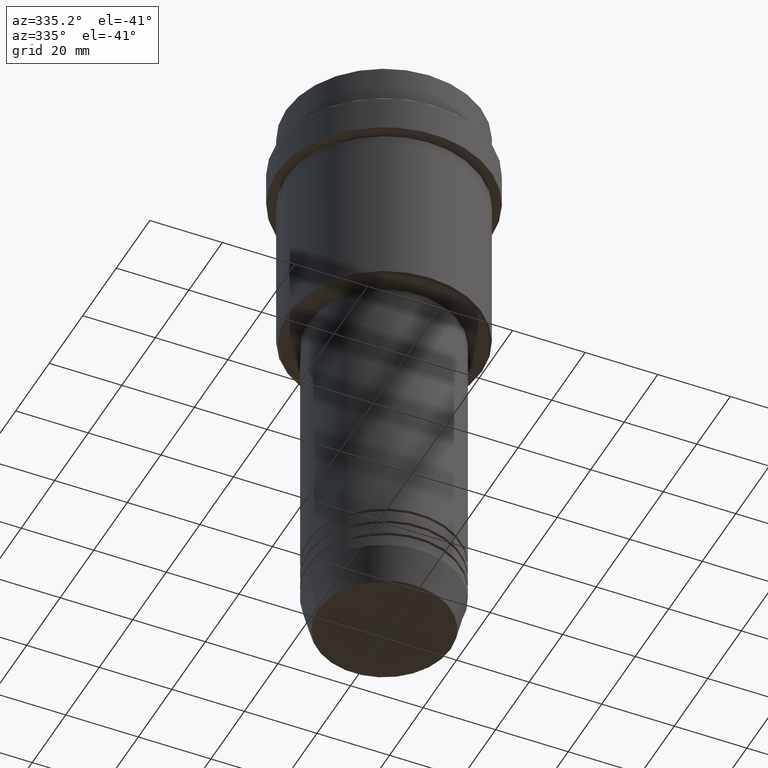
[diagram: clean part render]
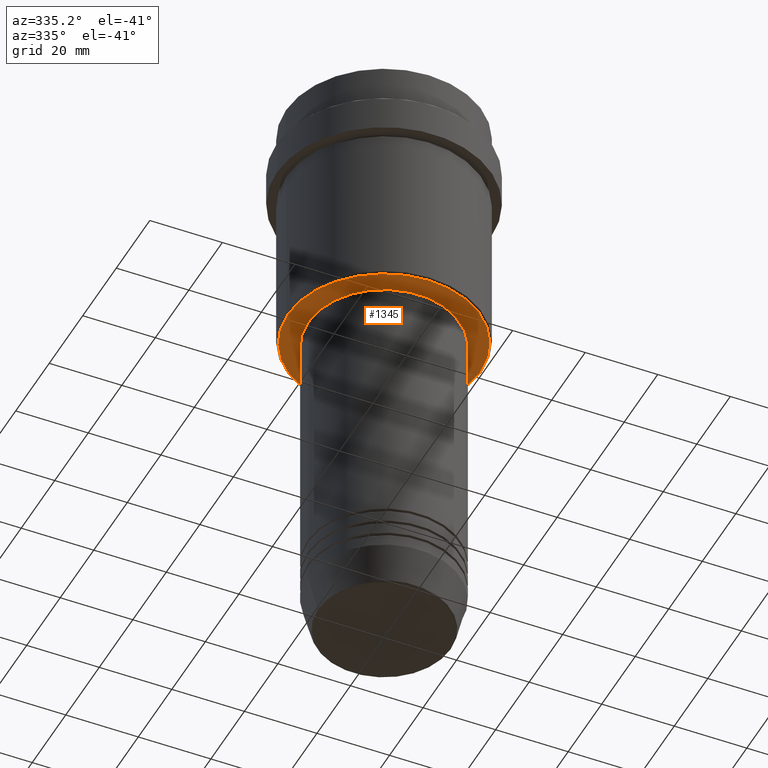
[diagram: same view with one face highlighted and labeled with its STEP entity id]
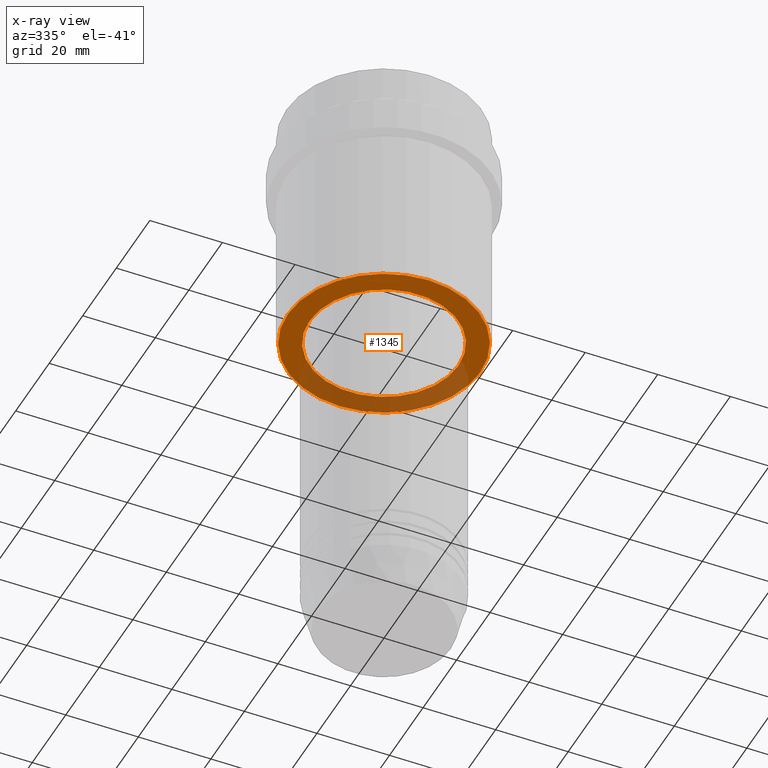
[diagram: x-ray of the same camera — body ghosted, the highlighted face saturated]
A machine part, auxiliary view. The second image highlights one B-rep face of the part: STEP entity #1345.
The next image is the same camera in x-ray: the body ghosted, the highlighted face saturated — about 34% of this face is hidden behind the body in this view.
In plain terms, the highlighted planar face has unit normal (0, 0, -1).
Its self-contained STEP definition (entity closure, byte-faithful):
#45 = CARTESIAN_POINT ( 'NONE',  ( 26.50000000000001066, 0.000000000000000000, -68.00000000000000000 ) ) ;
#112 = EDGE_LOOP ( 'NONE', ( #670, #1061 ) ) ;
#150 = AXIS2_PLACEMENT_3D ( 'NONE', #1029, #1368, #1271 ) ;
#223 = EDGE_CURVE ( 'NONE', #274, #1098, #503, .T. ) ;
#228 = DIRECTION ( 'NONE',  ( -1.000000000000000000, 0.000000000000000000, -0.000000000000000000 ) ) ;
#239 = ORIENTED_EDGE ( 'NONE', *, *, #511, .T. ) ;
#274 = VERTEX_POINT ( 'NONE', #395 ) ;
#318 = CARTESIAN_POINT ( 'NONE',  ( 0.000000000000000000, 27.00000000000000355, -68.00000000000000000 ) ) ;
#333 = FACE_BOUND ( 'NONE', #112, .T. ) ;
#349 = AXIS2_PLACEMENT_3D ( 'NONE', #1069, #1100, #1417 ) ;
#395 = CARTESIAN_POINT ( 'NONE',  ( -26.50000000000001066, 3.275930187719170735E-15, -68.00000000000000000 ) ) ;
#453 = DIRECTION ( 'NONE',  ( -1.000000000000000000, 0.000000000000000000, 0.000000000000000000 ) ) ;
#503 = CIRCLE ( 'NONE', #791, 26.50000000000001066 ) ;
#511 = EDGE_CURVE ( 'NONE', #1098, #274, #1263, .T. ) ;
#532 = VERTEX_POINT ( 'NONE', #1217 ) ;
#611 = DIRECTION ( 'NONE',  ( -1.000000000000000000, 0.000000000000000000, 0.000000000000000000 ) ) ;
#662 = CIRCLE ( 'NONE', #150, 20.49999999999999289 ) ;
#670 = ORIENTED_EDGE ( 'NONE', *, *, #883, .T. ) ;
#691 = CARTESIAN_POINT ( 'NONE',  ( 0.000000000000000000, 0.000000000000000000, -68.00000000000000000 ) ) ;
#695 = EDGE_CURVE ( 'NONE', #772, #532, #662, .T. ) ;
#772 = VERTEX_POINT ( 'NONE', #1053 ) ;
#791 = AXIS2_PLACEMENT_3D ( 'NONE', #691, #917, #611 ) ;
#865 = CARTESIAN_POINT ( 'NONE',  ( 0.000000000000000000, 0.000000000000000000, -68.00000000000000000 ) ) ;
#875 = DIRECTION ( 'NONE',  ( 0.000000000000000000, 0.000000000000000000, -1.000000000000000000 ) ) ;
#883 = EDGE_CURVE ( 'NONE', #532, #772, #1166, .T. ) ;
#888 = FACE_OUTER_BOUND ( 'NONE', #985, .T. ) ;
#917 = DIRECTION ( 'NONE',  ( 0.000000000000000000, 0.000000000000000000, -1.000000000000000000 ) ) ;
#985 = EDGE_LOOP ( 'NONE', ( #239, #1382 ) ) ;
#996 = DIRECTION ( 'NONE',  ( 0.000000000000000000, 0.000000000000000000, -1.000000000000000000 ) ) ;
#1018 = AXIS2_PLACEMENT_3D ( 'NONE', #865, #996, #453 ) ;
#1029 = CARTESIAN_POINT ( 'NONE',  ( 0.000000000000000000, 0.000000000000000000, -68.00000000000000000 ) ) ;
#1053 = CARTESIAN_POINT ( 'NONE',  ( -20.49999999999999289, 2.510525938252073298E-15, -68.00000000000000000 ) ) ;
#1061 = ORIENTED_EDGE ( 'NONE', *, *, #695, .T. ) ;
#1069 = CARTESIAN_POINT ( 'NONE',  ( 0.000000000000000000, 0.000000000000000000, -68.00000000000000000 ) ) ;
#1095 = AXIS2_PLACEMENT_3D ( 'NONE', #318, #875, #228 ) ;
#1098 = VERTEX_POINT ( 'NONE', #45 ) ;
#1100 = DIRECTION ( 'NONE',  ( -0.000000000000000000, -0.000000000000000000, 1.000000000000000000 ) ) ;
#1166 = CIRCLE ( 'NONE', #349, 20.49999999999999289 ) ;
#1201 = PLANE ( 'NONE',  #1095 ) ;
#1217 = CARTESIAN_POINT ( 'NONE',  ( 20.49999999999999289, 0.000000000000000000, -68.00000000000000000 ) ) ;
#1263 = CIRCLE ( 'NONE', #1018, 26.50000000000001066 ) ;
#1271 = DIRECTION ( 'NONE',  ( 1.000000000000000000, 0.000000000000000000, 0.000000000000000000 ) ) ;
#1345 = ADVANCED_FACE ( 'NONE', ( #888, #333 ), #1201, .T. ) ;
#1368 = DIRECTION ( 'NONE',  ( -0.000000000000000000, -0.000000000000000000, 1.000000000000000000 ) ) ;
#1382 = ORIENTED_EDGE ( 'NONE', *, *, #223, .T. ) ;
#1417 = DIRECTION ( 'NONE',  ( 1.000000000000000000, 0.000000000000000000, 0.000000000000000000 ) ) ;